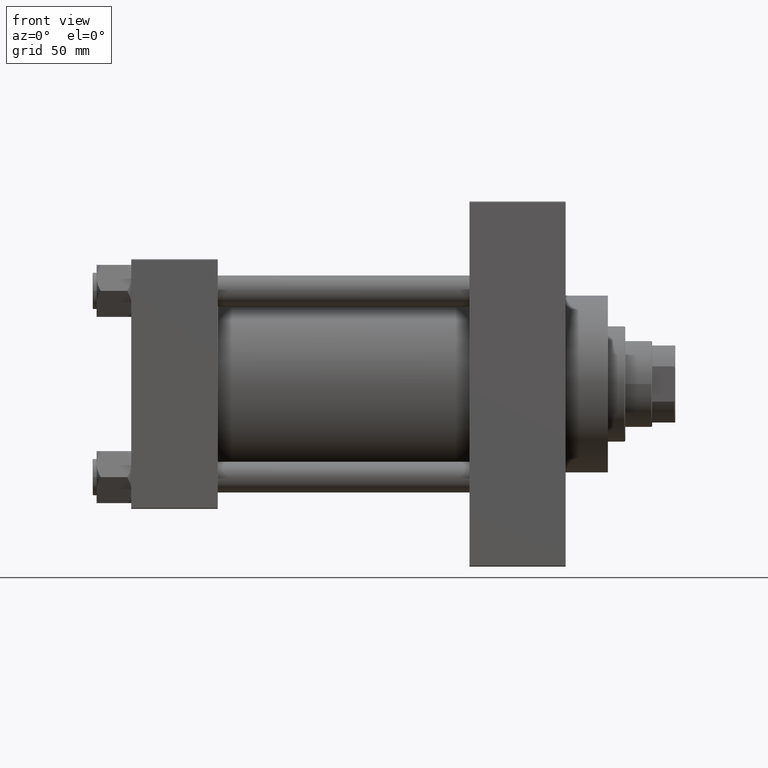
[diagram: clean part render]
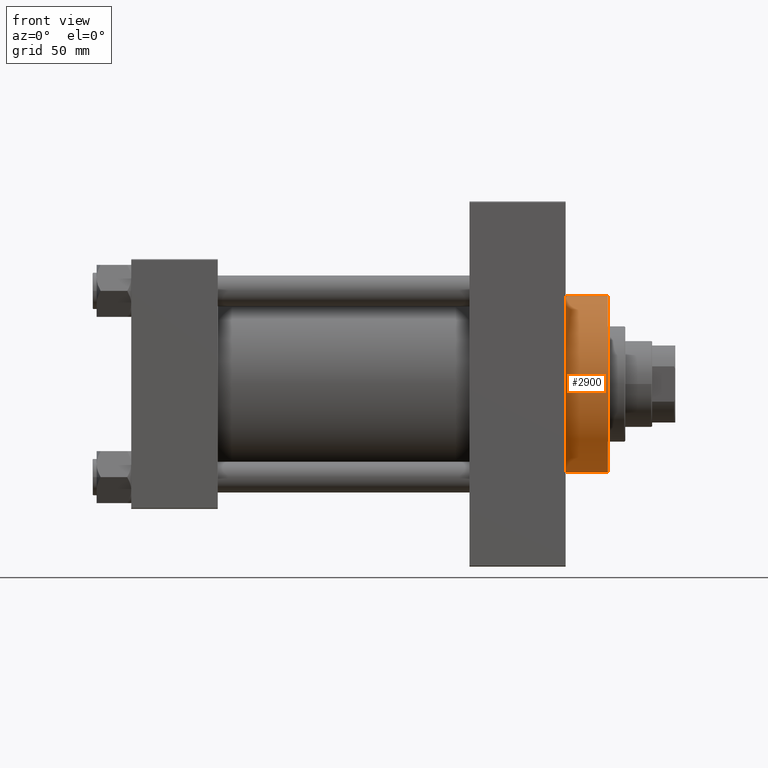
[diagram: same view with one face highlighted and labeled with its STEP entity id]
A machine part, front view. The second image highlights one B-rep face of the part: STEP entity #2900.
In plain terms, the highlighted cylindrical surface (partial cylindrical patch) has radius 46 mm, axis along (-1, -0, -0).
Its self-contained STEP definition (entity closure, byte-faithful):
#1246 = AXIS2_PLACEMENT_3D ( 'NONE', #29729, #18670, #44430 ) ;
#1780 = AXIS2_PLACEMENT_3D ( 'NONE', #25915, #23263, #45173 ) ;
#2900 = ADVANCED_FACE ( 'NONE', ( #46495 ), #38781, .T. ) ;
#3229 = CARTESIAN_POINT ( 'NONE',  ( 225.9999999999999716, 5.633375276077824704E-15, -46.00000000000000000 ) ) ;
#6965 = VERTEX_POINT ( 'NONE', #21308 ) ;
#9544 = CARTESIAN_POINT ( 'NONE',  ( 247.9999999999999716, 5.633375276077824704E-15, -46.00000000000000000 ) ) ;
#11356 = CARTESIAN_POINT ( 'NONE',  ( 247.9999999999999716, 0.000000000000000000, 46.00000000000000000 ) ) ;
#12521 = AXIS2_PLACEMENT_3D ( 'NONE', #47207, #46259, #28656 ) ;
#13634 = LINE ( 'NONE', #9544, #37271 ) ;
#14098 = DIRECTION ( 'NONE',  ( -1.000000000000000000, -0.000000000000000000, -0.000000000000000000 ) ) ;
#15512 = ORIENTED_EDGE ( 'NONE', *, *, #39449, .F. ) ;
#18670 = DIRECTION ( 'NONE',  ( 1.000000000000000000, 0.000000000000000000, 0.000000000000000000 ) ) ;
#20391 = EDGE_CURVE ( 'NONE', #46606, #38467, #25628, .T. ) ;
#20987 = VERTEX_POINT ( 'NONE', #37344 ) ;
#21308 = CARTESIAN_POINT ( 'NONE',  ( 247.9999999999999716, 5.633375276077824704E-15, -46.00000000000000000 ) ) ;
#23263 = DIRECTION ( 'NONE',  ( 1.000000000000000000, 0.000000000000000000, 0.000000000000000000 ) ) ;
#24806 = EDGE_LOOP ( 'NONE', ( #37879, #15512, #28870, #31938 ) ) ;
#25628 = CIRCLE ( 'NONE', #1780, 46.00000000000000000 ) ;
#25915 = CARTESIAN_POINT ( 'NONE',  ( 225.9999999999999716, 0.000000000000000000, 0.000000000000000000 ) ) ;
#26753 = LINE ( 'NONE', #11356, #47557 ) ;
#28656 = DIRECTION ( 'NONE',  ( 0.000000000000000000, 0.000000000000000000, 1.000000000000000000 ) ) ;
#28870 = ORIENTED_EDGE ( 'NONE', *, *, #42662, .T. ) ;
#29729 = CARTESIAN_POINT ( 'NONE',  ( 247.9999999999999716, 0.000000000000000000, 0.000000000000000000 ) ) ;
#29887 = DIRECTION ( 'NONE',  ( -1.000000000000000000, -0.000000000000000000, -0.000000000000000000 ) ) ;
#31938 = ORIENTED_EDGE ( 'NONE', *, *, #20391, .T. ) ;
#33730 = EDGE_CURVE ( 'NONE', #6965, #38467, #13634, .T. ) ;
#37271 = VECTOR ( 'NONE', #14098, 1000.000000000000000 ) ;
#37344 = CARTESIAN_POINT ( 'NONE',  ( 247.9999999999999716, 0.000000000000000000, 46.00000000000000000 ) ) ;
#37879 = ORIENTED_EDGE ( 'NONE', *, *, #33730, .F. ) ;
#38467 = VERTEX_POINT ( 'NONE', #3229 ) ;
#38781 = CYLINDRICAL_SURFACE ( 'NONE', #12521, 46.00000000000000000 ) ;
#38938 = CARTESIAN_POINT ( 'NONE',  ( 225.9999999999999716, 0.000000000000000000, 46.00000000000000000 ) ) ;
#39449 = EDGE_CURVE ( 'NONE', #20987, #6965, #42845, .T. ) ;
#42662 = EDGE_CURVE ( 'NONE', #20987, #46606, #26753, .T. ) ;
#42845 = CIRCLE ( 'NONE', #1246, 46.00000000000000000 ) ;
#44430 = DIRECTION ( 'NONE',  ( 0.000000000000000000, 0.000000000000000000, -1.000000000000000000 ) ) ;
#45173 = DIRECTION ( 'NONE',  ( 0.000000000000000000, 0.000000000000000000, -1.000000000000000000 ) ) ;
#46259 = DIRECTION ( 'NONE',  ( -1.000000000000000000, -0.000000000000000000, -0.000000000000000000 ) ) ;
#46495 = FACE_OUTER_BOUND ( 'NONE', #24806, .T. ) ;
#46606 = VERTEX_POINT ( 'NONE', #38938 ) ;
#47207 = CARTESIAN_POINT ( 'NONE',  ( 247.9999999999999716, 0.000000000000000000, 0.000000000000000000 ) ) ;
#47557 = VECTOR ( 'NONE', #29887, 1000.000000000000000 ) ;